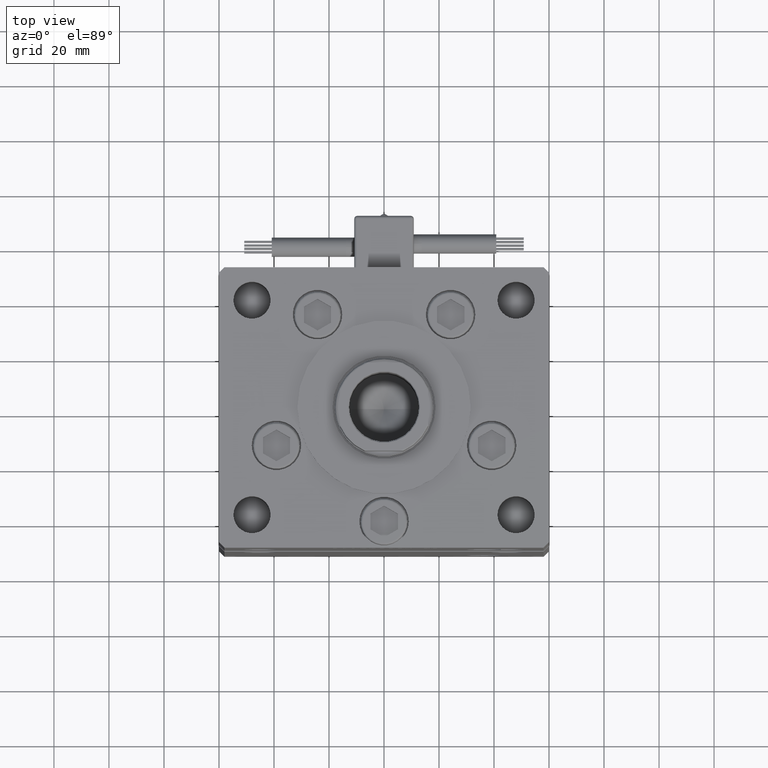
[diagram: clean part render]
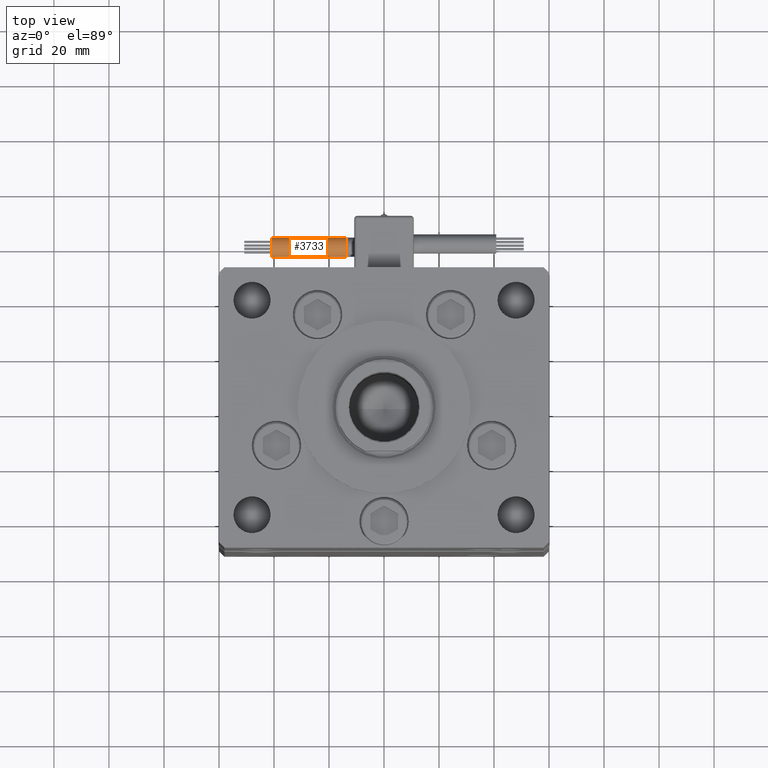
[diagram: same view with one face highlighted and labeled with its STEP entity id]
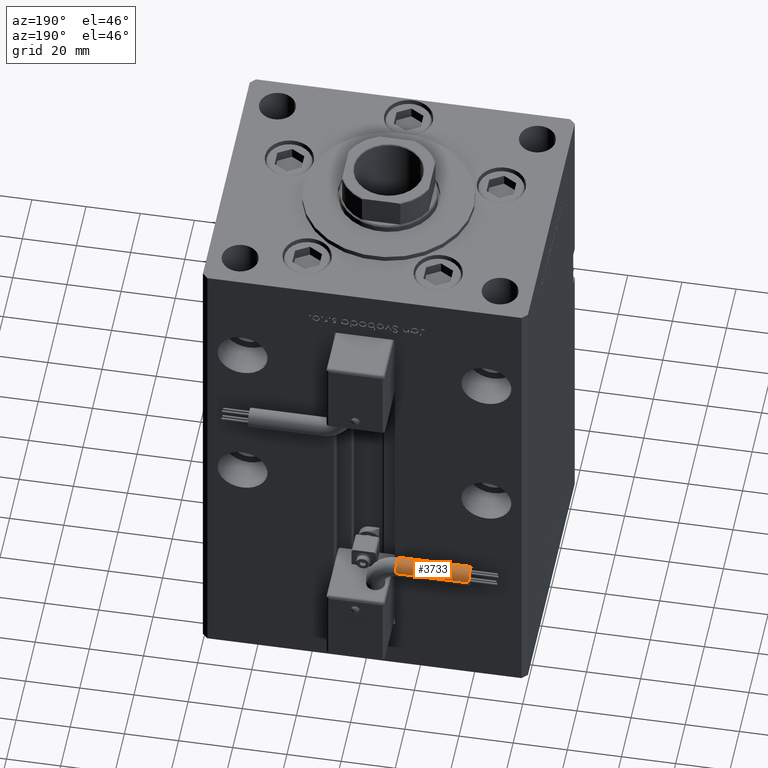
[diagram: same view with one face highlighted and labeled with its STEP entity id]
A machine part, top view. The second image highlights one B-rep face of the part: STEP entity #3733.
A second angle (auxiliary view) of the same face is appended — the face is thin or edge-on in the first view.
In plain terms, the highlighted cylindrical surface (edge-blend (fillet) strip) has radius 3.5 mm, axis along (-1, -0, -0).
Its self-contained STEP definition (entity closure, byte-faithful):
#1254 = EDGE_CURVE ( 'NONE', #34099, #18764, #29806, .T. ) ;
#1386 = CARTESIAN_POINT ( 'NONE',  ( 13.79999999999999893, 42.00000000000000000, -65.00000000000000000 ) ) ;
#1563 = CIRCLE ( 'NONE', #40632, 3.500000000000003109 ) ;
#1692 = VERTEX_POINT ( 'NONE', #8894 ) ;
#2484 = CARTESIAN_POINT ( 'NONE',  ( 13.79999999999999893, 42.00000000000000000, -65.00000000000000000 ) ) ;
#2751 = CARTESIAN_POINT ( 'NONE',  ( 13.79999999999999716, 38.50000000000000000, -65.00000000000000000 ) ) ;
#2763 = DIRECTION ( 'NONE',  ( 0.000000000000000000, 0.000000000000000000, -1.000000000000000000 ) ) ;
#3406 = ORIENTED_EDGE ( 'NONE', *, *, #18998, .F. ) ;
#3733 = ADVANCED_FACE ( 'NONE', ( #28584 ), #38237, .T. ) ;
#5048 = EDGE_CURVE ( 'NONE', #54875, #34099, #35459, .T. ) ;
#5889 = ORIENTED_EDGE ( 'NONE', *, *, #27087, .T. ) ;
#8077 = DIRECTION ( 'NONE',  ( 1.000000000000000000, 0.000000000000000000, 2.220446049250000002E-16 ) ) ;
#8894 = CARTESIAN_POINT ( 'NONE',  ( 40.80000000000000426, 38.50000000000000000, -65.00000000000000000 ) ) ;
#11819 = VECTOR ( 'NONE', #51420, 1000.000000000000000 ) ;
#15017 = VECTOR ( 'NONE', #15836, 1000.000000000000000 ) ;
#15783 = DIRECTION ( 'NONE',  ( 1.000000000000000000, -2.599999999999999847E-16, 2.220446049250000002E-16 ) ) ;
#15836 = DIRECTION ( 'NONE',  ( 1.000000000000000000, -2.599999999999999847E-16, 2.220446049250000002E-16 ) ) ;
#18181 = EDGE_LOOP ( 'NONE', ( #5889, #31911, #41439, #3406, #27868 ) ) ;
#18647 = EDGE_CURVE ( 'NONE', #56044, #1692, #54242, .T. ) ;
#18764 = VERTEX_POINT ( 'NONE', #47651 ) ;
#18998 = EDGE_CURVE ( 'NONE', #1692, #18764, #29594, .T. ) ;
#26477 = AXIS2_PLACEMENT_3D ( 'NONE', #1386, #48607, #52881 ) ;
#27087 = EDGE_CURVE ( 'NONE', #56044, #54875, #1563, .T. ) ;
#27572 = CARTESIAN_POINT ( 'NONE',  ( 13.79999999999999893, 45.50000000000000711, -65.00000000000000000 ) ) ;
#27868 = ORIENTED_EDGE ( 'NONE', *, *, #18647, .F. ) ;
#28584 = FACE_OUTER_BOUND ( 'NONE', #18181, .T. ) ;
#29477 = DIRECTION ( 'NONE',  ( 1.000000000000000000, 0.000000000000000000, 2.220446049250000002E-16 ) ) ;
#29594 = CIRCLE ( 'NONE', #47731, 3.500000000000003109 ) ;
#29806 = LINE ( 'NONE', #41511, #11819 ) ;
#31911 = ORIENTED_EDGE ( 'NONE', *, *, #5048, .T. ) ;
#34099 = VERTEX_POINT ( 'NONE', #27572 ) ;
#34234 = DIRECTION ( 'NONE',  ( 0.000000000000000000, 0.000000000000000000, -1.000000000000000000 ) ) ;
#35459 = CIRCLE ( 'NONE', #26477, 3.500000000000003109 ) ;
#37678 = DIRECTION ( 'NONE',  ( -4.956352788505158337E-16, -1.000000000000000000, 0.000000000000000000 ) ) ;
#38237 = CYLINDRICAL_SURFACE ( 'NONE', #47333, 3.500000000000003109 ) ;
#40392 = CARTESIAN_POINT ( 'NONE',  ( 13.79999999999999893, 42.00000000000000000, -68.50000000000000000 ) ) ;
#40632 = AXIS2_PLACEMENT_3D ( 'NONE', #2484, #29477, #2763 ) ;
#41439 = ORIENTED_EDGE ( 'NONE', *, *, #1254, .T. ) ;
#41511 = CARTESIAN_POINT ( 'NONE',  ( 13.80000000000000071, 45.50000000000000711, -65.00000000000000000 ) ) ;
#41752 = CARTESIAN_POINT ( 'NONE',  ( 13.79999999999999893, 38.50000000000000000, -65.00000000000000000 ) ) ;
#46748 = CARTESIAN_POINT ( 'NONE',  ( 13.79999999999999893, 42.00000000000000000, -65.00000000000000000 ) ) ;
#47333 = AXIS2_PLACEMENT_3D ( 'NONE', #46748, #15783, #37678 ) ;
#47651 = CARTESIAN_POINT ( 'NONE',  ( 40.80000000000000426, 45.50000000000000711, -65.00000000000000000 ) ) ;
#47731 = AXIS2_PLACEMENT_3D ( 'NONE', #54738, #8077, #34234 ) ;
#48607 = DIRECTION ( 'NONE',  ( 1.000000000000000000, 0.000000000000000000, 2.220446049250000002E-16 ) ) ;
#51420 = DIRECTION ( 'NONE',  ( 1.000000000000000000, -2.599999999999999847E-16, 2.220446049250000002E-16 ) ) ;
#52881 = DIRECTION ( 'NONE',  ( 0.000000000000000000, 0.000000000000000000, -1.000000000000000000 ) ) ;
#54242 = LINE ( 'NONE', #2751, #15017 ) ;
#54738 = CARTESIAN_POINT ( 'NONE',  ( 40.80000000000000426, 42.00000000000000000, -65.00000000000000000 ) ) ;
#54875 = VERTEX_POINT ( 'NONE', #40392 ) ;
#56044 = VERTEX_POINT ( 'NONE', #41752 ) ;